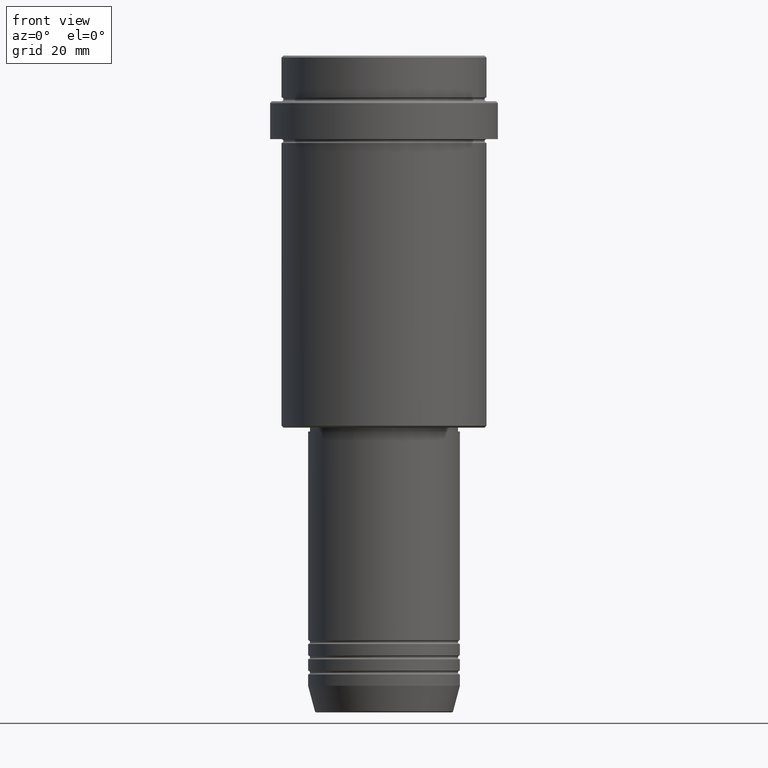
[diagram: clean part render]
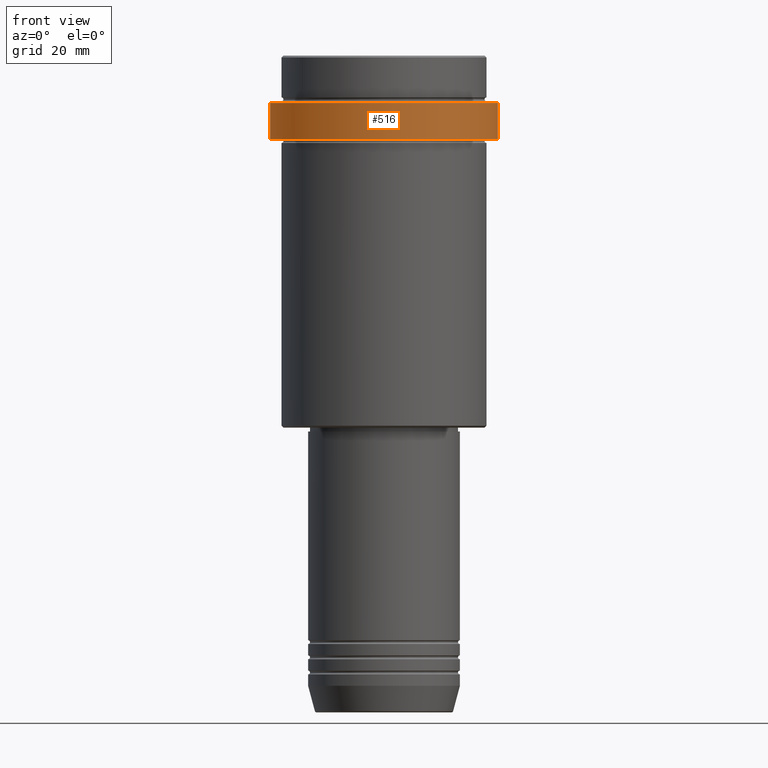
[diagram: same view with one face highlighted and labeled with its STEP entity id]
A machine part, front view. The second image highlights one B-rep face of the part: STEP entity #516.
In plain terms, the highlighted cylindrical surface (partial cylindrical patch) has radius 30 mm, axis along (-0, -0, 1).
Its self-contained STEP definition (entity closure, byte-faithful):
#6 = CYLINDRICAL_SURFACE ( 'NONE', #524, 30.00000000000000000 ) ;
#57 = DIRECTION ( 'NONE',  ( -0.000000000000000000, -0.000000000000000000, 1.000000000000000000 ) ) ;
#60 = VERTEX_POINT ( 'NONE', #123 ) ;
#66 = CIRCLE ( 'NONE', #574, 29.99999999999999645 ) ;
#74 = EDGE_CURVE ( 'NONE', #955, #397, #672, .T. ) ;
#123 = CARTESIAN_POINT ( 'NONE',  ( 29.99999999999999645, 0.000000000000000000, -22.00000000000000355 ) ) ;
#189 = CARTESIAN_POINT ( 'NONE',  ( 30.00000000000000000, 0.000000000000000000, -12.50000000000000888 ) ) ;
#190 = DIRECTION ( 'NONE',  ( -0.000000000000000000, -0.000000000000000000, 1.000000000000000000 ) ) ;
#234 = CARTESIAN_POINT ( 'NONE',  ( 0.000000000000000000, 0.000000000000000000, 0.000000000000000000 ) ) ;
#259 = EDGE_LOOP ( 'NONE', ( #1311, #604, #1269, #451 ) ) ;
#295 = CARTESIAN_POINT ( 'NONE',  ( 0.000000000000000000, 0.000000000000000000, -22.00000000000000355 ) ) ;
#332 = DIRECTION ( 'NONE',  ( -0.000000000000000000, -0.000000000000000000, 1.000000000000000000 ) ) ;
#376 = EDGE_CURVE ( 'NONE', #60, #828, #633, .T. ) ;
#397 = VERTEX_POINT ( 'NONE', #931 ) ;
#451 = ORIENTED_EDGE ( 'NONE', *, *, #877, .T. ) ;
#516 = ADVANCED_FACE ( 'NONE', ( #1217 ), #6, .T. ) ;
#524 = AXIS2_PLACEMENT_3D ( 'NONE', #234, #332, #1330 ) ;
#574 = AXIS2_PLACEMENT_3D ( 'NONE', #295, #57, #1376 ) ;
#604 = ORIENTED_EDGE ( 'NONE', *, *, #898, .T. ) ;
#631 = CARTESIAN_POINT ( 'NONE',  ( 0.000000000000000000, 0.000000000000000000, -12.50000000000000888 ) ) ;
#633 = LINE ( 'NONE', #1035, #1091 ) ;
#672 = LINE ( 'NONE', #878, #978 ) ;
#772 = CARTESIAN_POINT ( 'NONE',  ( -29.99999999999999645, 3.673940397442058389E-15, -22.00000000000000355 ) ) ;
#825 = DIRECTION ( 'NONE',  ( 1.000000000000000000, 0.000000000000000000, 0.000000000000000000 ) ) ;
#828 = VERTEX_POINT ( 'NONE', #189 ) ;
#877 = EDGE_CURVE ( 'NONE', #828, #397, #1328, .T. ) ;
#878 = CARTESIAN_POINT ( 'NONE',  ( -30.00000000000000000, 3.673940397442059178E-15, 0.000000000000000000 ) ) ;
#898 = EDGE_CURVE ( 'NONE', #955, #60, #66, .T. ) ;
#931 = CARTESIAN_POINT ( 'NONE',  ( -30.00000000000000000, 3.673940397442059178E-15, -12.50000000000000888 ) ) ;
#955 = VERTEX_POINT ( 'NONE', #772 ) ;
#978 = VECTOR ( 'NONE', #1212, 1000.000000000000000 ) ;
#1026 = AXIS2_PLACEMENT_3D ( 'NONE', #631, #1061, #825 ) ;
#1035 = CARTESIAN_POINT ( 'NONE',  ( 30.00000000000000000, 0.000000000000000000, 0.000000000000000000 ) ) ;
#1061 = DIRECTION ( 'NONE',  ( 0.000000000000000000, 0.000000000000000000, -1.000000000000000000 ) ) ;
#1091 = VECTOR ( 'NONE', #190, 1000.000000000000000 ) ;
#1212 = DIRECTION ( 'NONE',  ( -0.000000000000000000, -0.000000000000000000, 1.000000000000000000 ) ) ;
#1217 = FACE_OUTER_BOUND ( 'NONE', #259, .T. ) ;
#1269 = ORIENTED_EDGE ( 'NONE', *, *, #376, .T. ) ;
#1311 = ORIENTED_EDGE ( 'NONE', *, *, #74, .F. ) ;
#1328 = CIRCLE ( 'NONE', #1026, 30.00000000000000000 ) ;
#1330 = DIRECTION ( 'NONE',  ( 1.000000000000000000, 0.000000000000000000, 0.000000000000000000 ) ) ;
#1376 = DIRECTION ( 'NONE',  ( 1.000000000000000000, 0.000000000000000000, 0.000000000000000000 ) ) ;